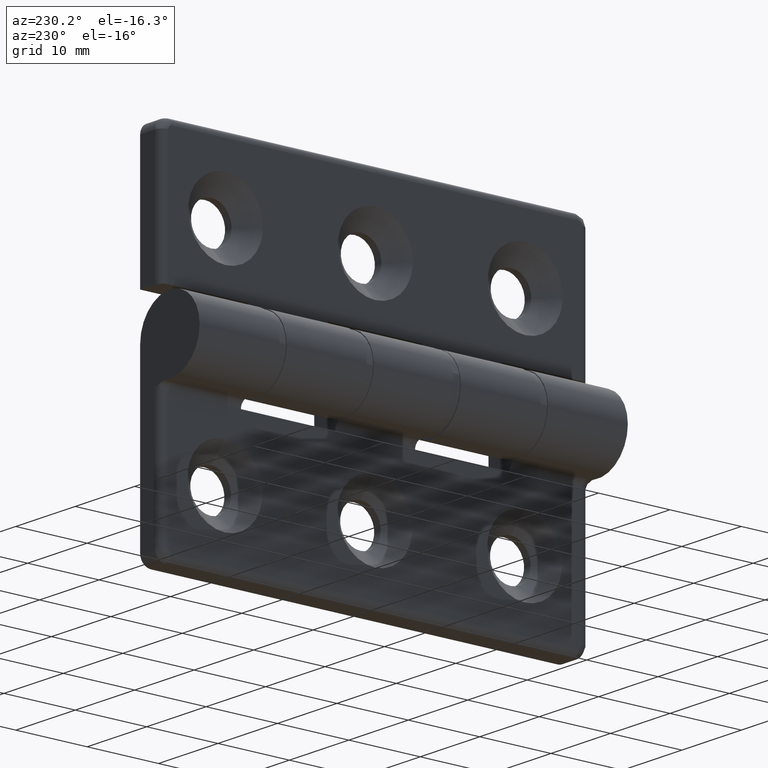
[diagram: clean part render]
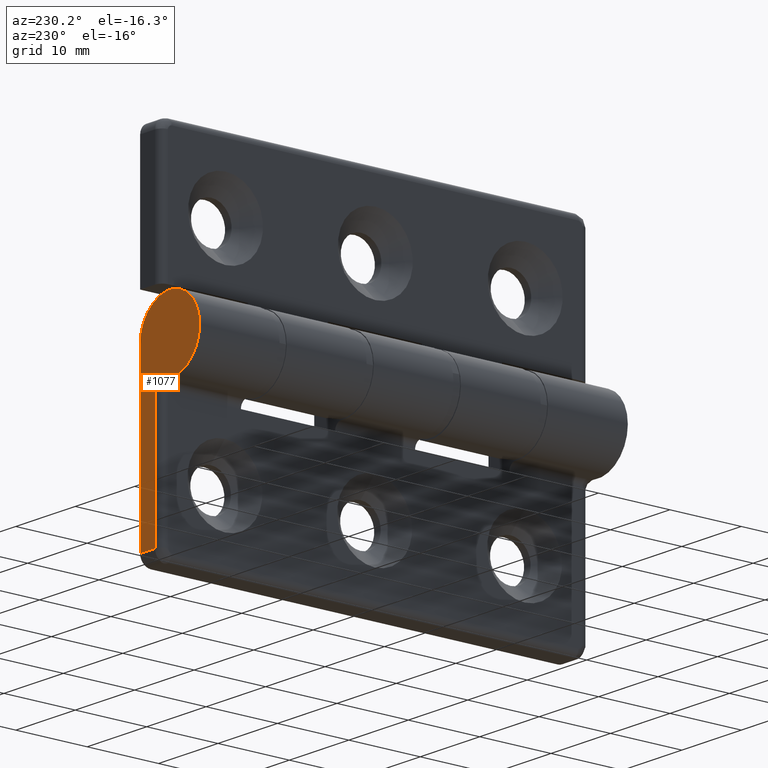
[diagram: same view with one face highlighted and labeled with its STEP entity id]
A machine part, auxiliary view. The second image highlights one B-rep face of the part: STEP entity #1077.
In plain terms, the highlighted planar face has unit normal (0, 1, 0).
Its self-contained STEP definition (entity closure, byte-faithful):
#92=PLANE('',#1172);
#110=B_SPLINE_CURVE_WITH_KNOTS('',3,(#1733,#1734,#1735,#1736,#1737,#1738,
#1739,#1740,#1741,#1742),.UNSPECIFIED.,.F.,.F.,(4,2,2,2,4),(0.,0.0627316911085769,
0.158347915754488,0.260894845014487,0.261473027288261),.UNSPECIFIED.);
#146=FACE_OUTER_BOUND('',#222,.T.);
#222=EDGE_LOOP('',(#874,#875,#876,#877,#878));
#288=LINE('',#1800,#365);
#290=LINE('',#1806,#367);
#293=LINE('',#1814,#370);
#365=VECTOR('',#1323,18.045643941345);
#367=VECTOR('',#1329,2.5);
#370=VECTOR('',#1340,23.5);
#433=CIRCLE('',#1130,5.);
#508=VERTEX_POINT('',#1731);
#509=VERTEX_POINT('',#1732);
#511=VERTEX_POINT('',#1756);
#518=VERTEX_POINT('',#1793);
#519=VERTEX_POINT('',#1802);
#612=EDGE_CURVE('',#508,#509,#110,.T.);
#617=EDGE_CURVE('',#508,#511,#433,.T.);
#630=EDGE_CURVE('',#509,#518,#288,.T.);
#633=EDGE_CURVE('',#518,#519,#290,.T.);
#637=EDGE_CURVE('',#511,#519,#293,.T.);
#874=ORIENTED_EDGE('',*,*,#617,.T.);
#875=ORIENTED_EDGE('',*,*,#637,.T.);
#876=ORIENTED_EDGE('',*,*,#633,.F.);
#877=ORIENTED_EDGE('',*,*,#630,.F.);
#878=ORIENTED_EDGE('',*,*,#612,.F.);
#1077=ADVANCED_FACE('',(#146),#92,.T.);
#1130=AXIS2_PLACEMENT_3D('',#1758,#1293,#1294);
#1172=AXIS2_PLACEMENT_3D('',#1863,#1399,#1400);
#1293=DIRECTION('center_axis',(0.,1.,0.));
#1294=DIRECTION('ref_axis',(-1.,0.,0.));
#1323=DIRECTION('',(-5.87376257845724E-16,0.,-1.));
#1329=DIRECTION('',(1.,0.,0.));
#1340=DIRECTION('',(-4.88498130835069E-16,0.,-1.));
#1399=DIRECTION('center_axis',(0.,1.,0.));
#1400=DIRECTION('ref_axis',(0.,0.,1.));
#1731=CARTESIAN_POINT('',(0.639957660359251,60.,-4.95887630345298));
#1732=CARTESIAN_POINT('',(2.49999999927069,60.,-5.45435605865497));
#1733=CARTESIAN_POINT('Ctrl Pts',(0.63995766035926,60.,-4.95887630345298));
#1734=CARTESIAN_POINT('Ctrl Pts',(0.847343458035163,60.,-4.93211255260483));
#1735=CARTESIAN_POINT('Ctrl Pts',(1.03700953504528,60.,-4.95619507374859));
#1736=CARTESIAN_POINT('Ctrl Pts',(1.40176892755072,60.,-5.03384043626269));
#1737=CARTESIAN_POINT('Ctrl Pts',(1.60528720515089,60.,-5.1153087007118));
#1738=CARTESIAN_POINT('Ctrl Pts',(2.01360087249746,60.,-5.2853201997567));
#1739=CARTESIAN_POINT('Ctrl Pts',(2.23354052777151,60.,-5.38068375108308));
#1740=CARTESIAN_POINT('Ctrl Pts',(2.49704443126063,60.,-5.45354214660309));
#1741=CARTESIAN_POINT('Ctrl Pts',(2.49852207263086,60.,-5.45394961317846));
#1742=CARTESIAN_POINT('Ctrl Pts',(2.49999999999999,60.,-5.45435605731786));
#1756=CARTESIAN_POINT('',(5.,60.,-1.66533453693773E-15));
#1758=CARTESIAN_POINT('Origin',(0.,60.,0.));
#1793=CARTESIAN_POINT('',(2.49999999999999,60.,-23.5));
#1800=CARTESIAN_POINT('',(2.49999999999999,60.,-17.9587937600321));
#1802=CARTESIAN_POINT('',(4.99999999999999,60.,-23.5));
#1806=CARTESIAN_POINT('',(4.07825715338629,60.,-23.5));
#1814=CARTESIAN_POINT('',(5.,60.,-1.53080849893419E-15));
#1863=CARTESIAN_POINT('Origin',(3.15651430677258,60.,-10.9175875200642));